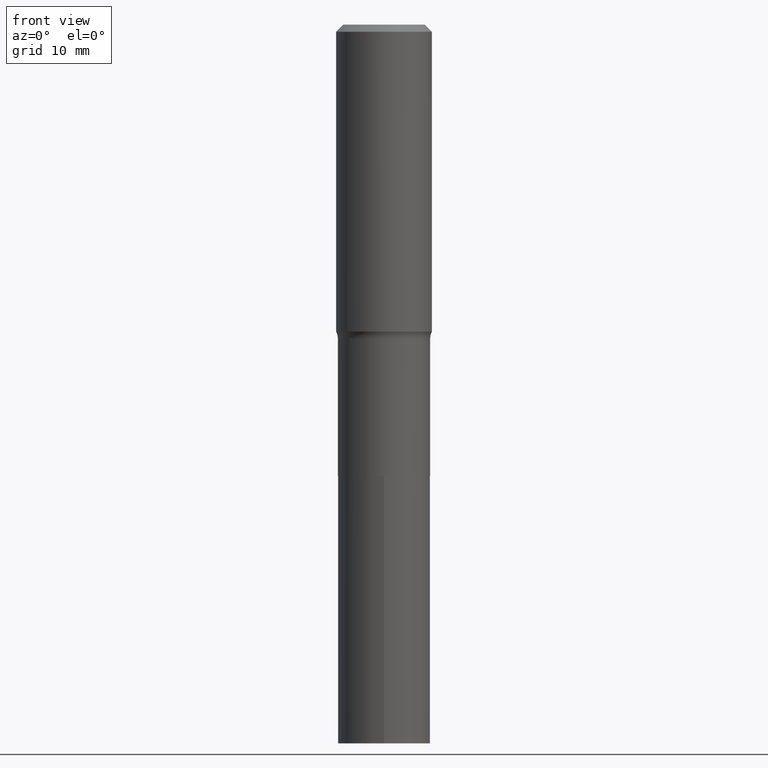
[diagram: clean part render]
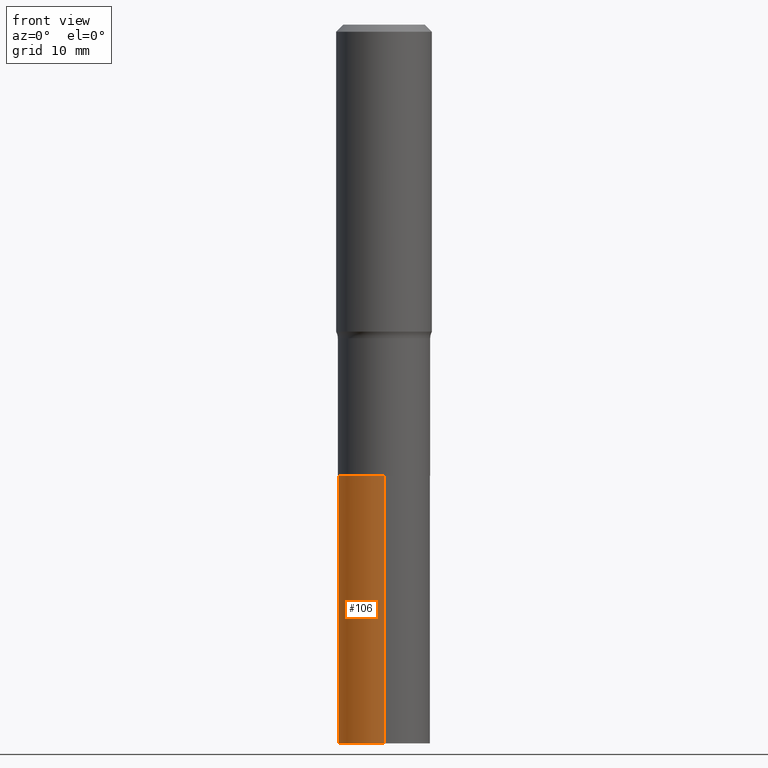
[diagram: same view with one face highlighted and labeled with its STEP entity id]
A machine part, front view. The second image highlights one B-rep face of the part: STEP entity #106.
In plain terms, the highlighted cylindrical surface (partial cylindrical patch) has radius 6.7462 mm, axis along (-0, 0, 1).
Its self-contained STEP definition (entity closure, byte-faithful):
#25 = EDGE_CURVE ( 'NONE', #331, #294, #460, .T. ) ;
#29 = VECTOR ( 'NONE', #385, 39.37007874015748143 ) ;
#62 = CYLINDRICAL_SURFACE ( 'NONE', #214, 0.2656000000000000028 ) ;
#95 = DIRECTION ( 'NONE',  ( -6.982962677686265133E-15, -1.000000000000000000, 4.114228906120878260E-15 ) ) ;
#106 = ADVANCED_FACE ( 'NONE', ( #355 ), #62, .T. ) ;
#116 = AXIS2_PLACEMENT_3D ( 'NONE', #250, #224, #217 ) ;
#132 = LINE ( 'NONE', #240, #29 ) ;
#169 = CARTESIAN_POINT ( 'NONE',  ( 1.887201506178908155E-15, 0.2655999999999855699, -4.133900000000002350 ) ) ;
#187 = VERTEX_POINT ( 'NONE', #372 ) ;
#212 = DIRECTION ( 'NONE',  ( -2.446021775640540996E-29, 3.490689455109939628E-15, 1.000000000000000000 ) ) ;
#214 = AXIS2_PLACEMENT_3D ( 'NONE', #450, #212, #95 ) ;
#217 = DIRECTION ( 'NONE',  ( -6.982962677686265133E-15, -1.000000000000000000, 4.114228906120878260E-15 ) ) ;
#221 = EDGE_CURVE ( 'NONE', #331, #187, #427, .T. ) ;
#224 = DIRECTION ( 'NONE',  ( -2.446021775640540996E-29, 3.490689455109939628E-15, 1.000000000000000000 ) ) ;
#240 = CARTESIAN_POINT ( 'NONE',  ( -1.854674887193408547E-15, -0.2656000000000090511, -2.594899999999999096 ) ) ;
#250 = CARTESIAN_POINT ( 'NONE',  ( 1.011017451788060457E-28, -1.443221599757827905E-14, -4.133900000000000574 ) ) ;
#259 = CARTESIAN_POINT ( 'NONE',  ( -1.854674887193371076E-15, -0.2656000000000144357, -4.133899999999999686 ) ) ;
#286 = VECTOR ( 'NONE', #338, 39.37007874015748143 ) ;
#294 = VERTEX_POINT ( 'NONE', #259 ) ;
#314 = CARTESIAN_POINT ( 'NONE',  ( -1.854674887193408547E-15, -0.2656000000000090511, -2.594899999999999096 ) ) ;
#315 = CARTESIAN_POINT ( 'NONE',  ( 6.345747005169811267E-29, -9.060044926164079731E-15, -2.594900000000000428 ) ) ;
#328 = CIRCLE ( 'NONE', #360, 0.2656000000000000028 ) ;
#331 = VERTEX_POINT ( 'NONE', #169 ) ;
#336 = ORIENTED_EDGE ( 'NONE', *, *, #379, .F. ) ;
#338 = DIRECTION ( 'NONE',  ( -2.446021775640541276E-29, 3.490689455109939233E-15, 1.000000000000000000 ) ) ;
#341 = ORIENTED_EDGE ( 'NONE', *, *, #221, .F. ) ;
#349 = DIRECTION ( 'NONE',  ( -2.446021775640540996E-29, 3.490689455109939628E-15, 1.000000000000000000 ) ) ;
#355 = FACE_OUTER_BOUND ( 'NONE', #370, .T. ) ;
#360 = AXIS2_PLACEMENT_3D ( 'NONE', #315, #349, #383 ) ;
#370 = EDGE_LOOP ( 'NONE', ( #341, #381, #464, #336 ) ) ;
#372 = CARTESIAN_POINT ( 'NONE',  ( 1.887201506178927482E-15, 0.2655999999999909544, -2.594900000000001317 ) ) ;
#379 = EDGE_CURVE ( 'NONE', #187, #428, #328, .T. ) ;
#381 = ORIENTED_EDGE ( 'NONE', *, *, #25, .T. ) ;
#383 = DIRECTION ( 'NONE',  ( -6.982962677686265133E-15, -1.000000000000000000, 4.114228906120878260E-15 ) ) ;
#385 = DIRECTION ( 'NONE',  ( -2.446021775640541276E-29, 3.490689455109939233E-15, 1.000000000000000000 ) ) ;
#427 = LINE ( 'NONE', #468, #286 ) ;
#428 = VERTEX_POINT ( 'NONE', #314 ) ;
#434 = EDGE_CURVE ( 'NONE', #294, #428, #132, .T. ) ;
#450 = CARTESIAN_POINT ( 'NONE',  ( 6.345747005169811267E-29, -9.060044926164079731E-15, -2.594900000000000428 ) ) ;
#460 = CIRCLE ( 'NONE', #116, 0.2656000000000000028 ) ;
#464 = ORIENTED_EDGE ( 'NONE', *, *, #434, .T. ) ;
#468 = CARTESIAN_POINT ( 'NONE',  ( 1.887201506178889222E-15, 0.2655999999999909544, -2.594900000000001317 ) ) ;